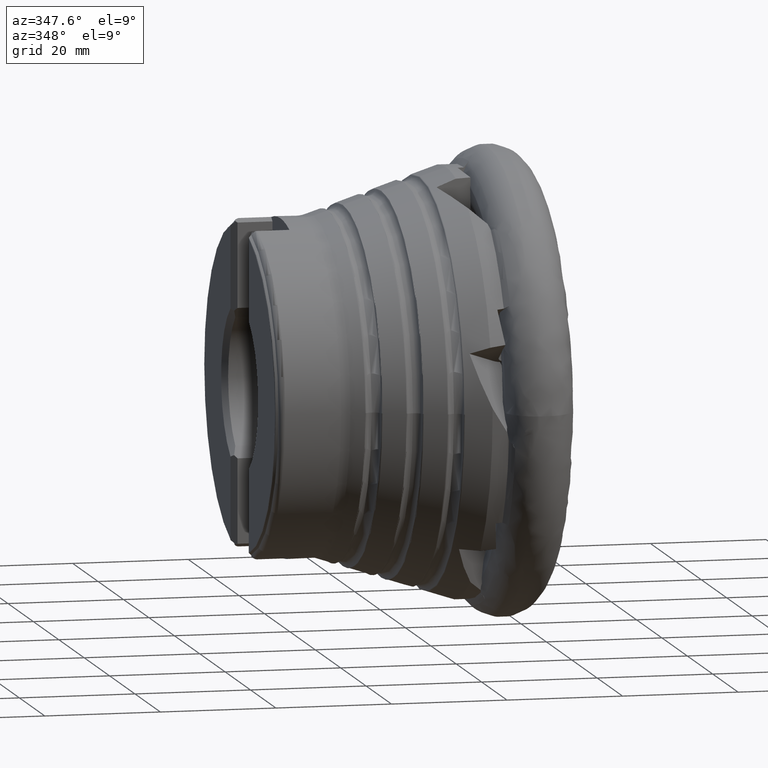
[diagram: clean part render]
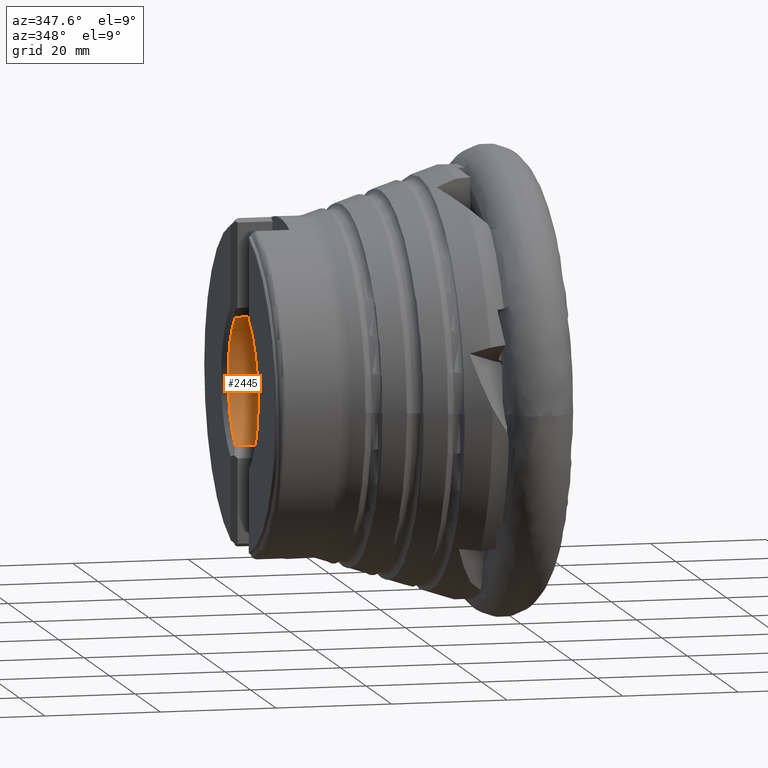
[diagram: same view with one face highlighted and labeled with its STEP entity id]
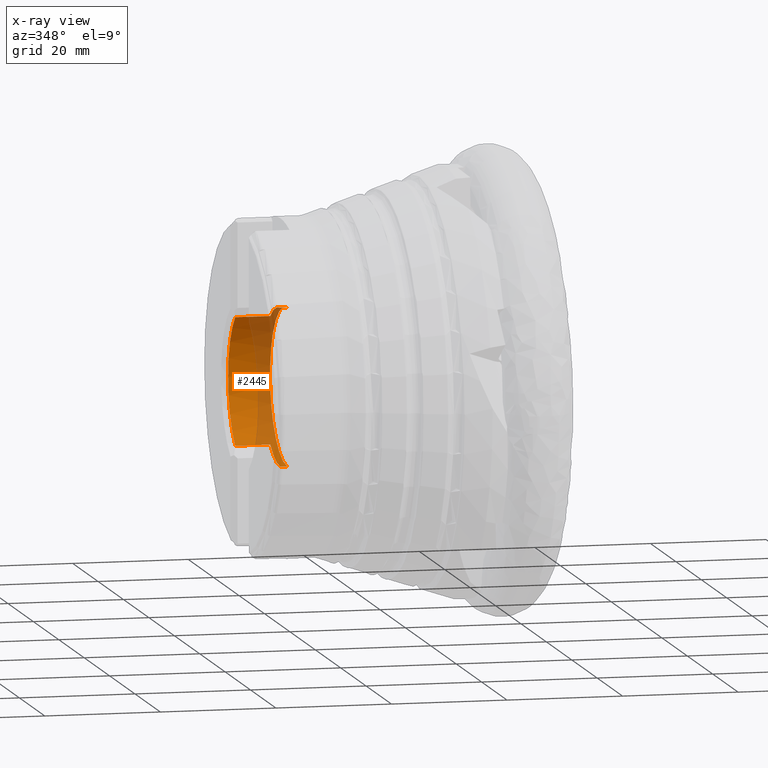
[diagram: x-ray of the same camera — body ghosted, the highlighted face saturated]
A machine part, auxiliary view. The second image highlights one B-rep face of the part: STEP entity #2445.
The next image is the same camera in x-ray: the body ghosted, the highlighted face saturated — about 42% of this face is hidden behind the body in this view.
In plain terms, the highlighted cylindrical surface (partial cylindrical patch) has radius 13.575 mm, axis along (1, -0, -0).
Its self-contained STEP definition (entity closure, byte-faithful):
#101 = CYLINDRICAL_SURFACE ( 'NONE', #8927, 13.57499999999999400 ) ;
#147 = CARTESIAN_POINT ( 'NONE',  ( -41.65000000000000600, 1.662458029842531100E-015, 13.57499999999999400 ) ) ;
#148 = CARTESIAN_POINT ( 'NONE',  ( 0.0000000000000000000, 1.662458029842531100E-015, 13.57499999999999400 ) ) ;
#222 = CARTESIAN_POINT ( 'NONE',  ( -1.534720168711604700E-030, 7.956204235286524100, 10.99906537694947100 ) ) ;
#383 = DIRECTION ( 'NONE',  ( 1.000000000000000000, -0.0000000000000000000, -0.0000000000000000000 ) ) ;
#683 = DIRECTION ( 'NONE',  ( 1.000000000000000000, -0.0000000000000000000, -0.0000000000000000000 ) ) ;
#819 = VECTOR ( 'NONE', #683, 1000.000000000000000 ) ;
#1157 = VERTEX_POINT ( 'NONE', #2126 ) ;
#1314 = VECTOR ( 'NONE', #6381, 1000.000000000000000 ) ;
#1334 = CARTESIAN_POINT ( 'NONE',  ( -40.45000000000001000, 1.662458029842531100E-015, 13.57499999999999400 ) ) ;
#1366 = EDGE_LOOP ( 'NONE', ( #7644, #4557, #3372, #9521, #8725, #8370, #9532, #4976 ) ) ;
#1394 = AXIS2_PLACEMENT_3D ( 'NONE', #4556, #1461, #8552 ) ;
#1415 = EDGE_CURVE ( 'NONE', #5141, #6699, #4366, .T. ) ;
#1461 = DIRECTION ( 'NONE',  ( 1.000000000000000000, -0.0000000000000000000, -0.0000000000000000000 ) ) ;
#1467 = LINE ( 'NONE', #7833, #8177 ) ;
#1556 = CARTESIAN_POINT ( 'NONE',  ( -47.70000000000000300, 0.0000000000000000000, 0.0000000000000000000 ) ) ;
#1619 = AXIS2_PLACEMENT_3D ( 'NONE', #7219, #8034, #9657 ) ;
#1774 = DIRECTION ( 'NONE',  ( -1.000000000000000000, 0.0000000000000000000, 0.0000000000000000000 ) ) ;
#2126 = CARTESIAN_POINT ( 'NONE',  ( -40.45000000000001000, 0.0000000000000000000, -13.57499999999999400 ) ) ;
#2421 = LINE ( 'NONE', #10018, #819 ) ;
#2445 = ADVANCED_FACE ( 'NONE', ( #4956 ), #101, .F. ) ;
#2466 = EDGE_CURVE ( 'NONE', #8116, #3795, #6451, .T. ) ;
#2534 = CARTESIAN_POINT ( 'NONE',  ( -47.70000000000000300, 7.956204235286531200, 10.99906537694946500 ) ) ;
#2948 = AXIS2_PLACEMENT_3D ( 'NONE', #1556, #7729, #3122 ) ;
#3122 = DIRECTION ( 'NONE',  ( 0.0000000000000000000, 0.0000000000000000000, -1.000000000000000000 ) ) ;
#3184 = DIRECTION ( 'NONE',  ( 1.000000000000000000, -0.0000000000000000000, -0.0000000000000000000 ) ) ;
#3372 = ORIENTED_EDGE ( 'NONE', *, *, #5989, .T. ) ;
#3435 = CIRCLE ( 'NONE', #1619, 13.57499999999999400 ) ;
#3795 = VERTEX_POINT ( 'NONE', #7449 ) ;
#4160 = VERTEX_POINT ( 'NONE', #8335 ) ;
#4228 = DIRECTION ( 'NONE',  ( -1.000000000000000000, -0.0000000000000000000, -0.0000000000000000000 ) ) ;
#4366 = LINE ( 'NONE', #148, #1314 ) ;
#4383 = CARTESIAN_POINT ( 'NONE',  ( -47.70000000000000300, 7.956204235286531200, -10.99906537694946500 ) ) ;
#4556 = CARTESIAN_POINT ( 'NONE',  ( -40.45000000000001000, 0.0000000000000000000, 0.0000000000000000000 ) ) ;
#4557 = ORIENTED_EDGE ( 'NONE', *, *, #9974, .T. ) ;
#4794 = EDGE_CURVE ( 'NONE', #3795, #1157, #2421, .T. ) ;
#4956 = FACE_OUTER_BOUND ( 'NONE', #1366, .T. ) ;
#4976 = ORIENTED_EDGE ( 'NONE', *, *, #5485, .T. ) ;
#4991 = CARTESIAN_POINT ( 'NONE',  ( 0.0000000000000000000, 0.0000000000000000000, 0.0000000000000000000 ) ) ;
#5141 = VERTEX_POINT ( 'NONE', #147 ) ;
#5359 = CIRCLE ( 'NONE', #2948, 13.57499999999999400 ) ;
#5485 = EDGE_CURVE ( 'NONE', #1157, #6699, #9867, .T. ) ;
#5815 = CARTESIAN_POINT ( 'NONE',  ( -41.65000000000000600, 0.0000000000000000000, 0.0000000000000000000 ) ) ;
#5989 = EDGE_CURVE ( 'NONE', #4160, #9983, #8106, .T. ) ;
#6381 = DIRECTION ( 'NONE',  ( 1.000000000000000000, -0.0000000000000000000, -0.0000000000000000000 ) ) ;
#6451 = CIRCLE ( 'NONE', #9464, 13.57499999999999400 ) ;
#6699 = VERTEX_POINT ( 'NONE', #1334 ) ;
#7219 = CARTESIAN_POINT ( 'NONE',  ( -41.65000000000000600, 0.0000000000000000000, 0.0000000000000000000 ) ) ;
#7449 = CARTESIAN_POINT ( 'NONE',  ( -41.65000000000000600, 0.0000000000000000000, -13.57499999999999400 ) ) ;
#7472 = DIRECTION ( 'NONE',  ( 0.0000000000000000000, 3.552713678800500900E-015, -1.000000000000000000 ) ) ;
#7644 = ORIENTED_EDGE ( 'NONE', *, *, #1415, .F. ) ;
#7729 = DIRECTION ( 'NONE',  ( 1.000000000000000000, -0.0000000000000000000, -0.0000000000000000000 ) ) ;
#7833 = CARTESIAN_POINT ( 'NONE',  ( -1.227776134969284000E-030, 7.956204235286525900, -10.99906537694947100 ) ) ;
#8013 = CARTESIAN_POINT ( 'NONE',  ( -41.65000000000000600, 7.956204235286520500, -10.99906537694947200 ) ) ;
#8034 = DIRECTION ( 'NONE',  ( -1.000000000000000000, -0.0000000000000000000, -0.0000000000000000000 ) ) ;
#8106 = LINE ( 'NONE', #222, #9094 ) ;
#8116 = VERTEX_POINT ( 'NONE', #8013 ) ;
#8177 = VECTOR ( 'NONE', #3184, 1000.000000000000000 ) ;
#8249 = DIRECTION ( 'NONE',  ( 0.0000000000000000000, 0.0000000000000000000, -1.000000000000000000 ) ) ;
#8335 = CARTESIAN_POINT ( 'NONE',  ( -41.65000000000000600, 7.956204235286517000, 10.99906537694947600 ) ) ;
#8370 = ORIENTED_EDGE ( 'NONE', *, *, #2466, .T. ) ;
#8552 = DIRECTION ( 'NONE',  ( 0.0000000000000000000, 0.0000000000000000000, -1.000000000000000000 ) ) ;
#8725 = ORIENTED_EDGE ( 'NONE', *, *, #9652, .T. ) ;
#8927 = AXIS2_PLACEMENT_3D ( 'NONE', #4991, #383, #8249 ) ;
#9094 = VECTOR ( 'NONE', #1774, 1000.000000000000000 ) ;
#9464 = AXIS2_PLACEMENT_3D ( 'NONE', #5815, #4228, #7472 ) ;
#9472 = EDGE_CURVE ( 'NONE', #10055, #9983, #5359, .T. ) ;
#9521 = ORIENTED_EDGE ( 'NONE', *, *, #9472, .F. ) ;
#9532 = ORIENTED_EDGE ( 'NONE', *, *, #4794, .T. ) ;
#9652 = EDGE_CURVE ( 'NONE', #10055, #8116, #1467, .T. ) ;
#9657 = DIRECTION ( 'NONE',  ( 0.0000000000000000000, 0.0000000000000000000, -1.000000000000000000 ) ) ;
#9867 = CIRCLE ( 'NONE', #1394, 13.57499999999999400 ) ;
#9974 = EDGE_CURVE ( 'NONE', #5141, #4160, #3435, .T. ) ;
#9983 = VERTEX_POINT ( 'NONE', #2534 ) ;
#10018 = CARTESIAN_POINT ( 'NONE',  ( 0.0000000000000000000, 0.0000000000000000000, -13.57499999999999400 ) ) ;
#10055 = VERTEX_POINT ( 'NONE', #4383 ) ;